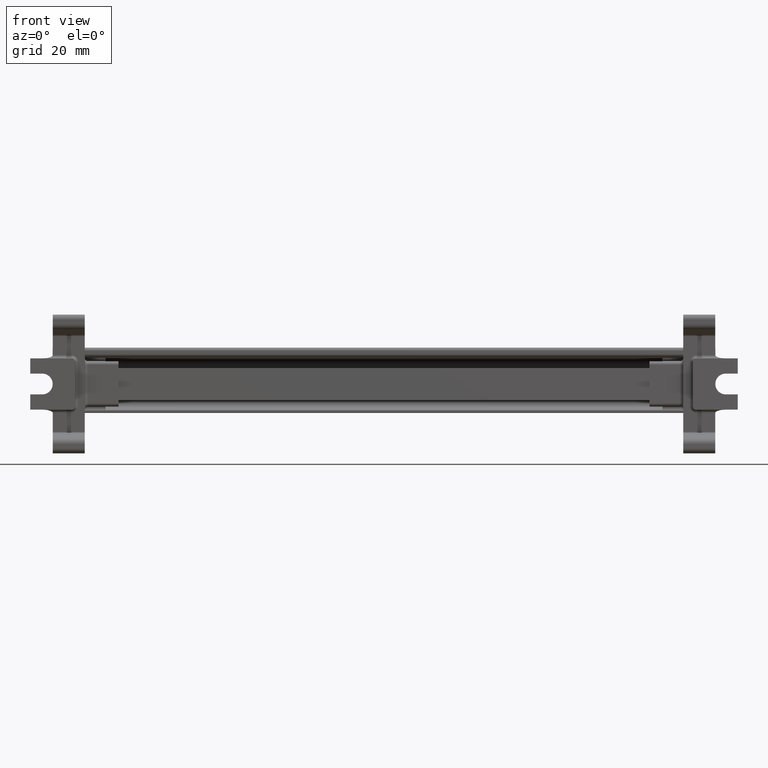
[diagram: clean part render]
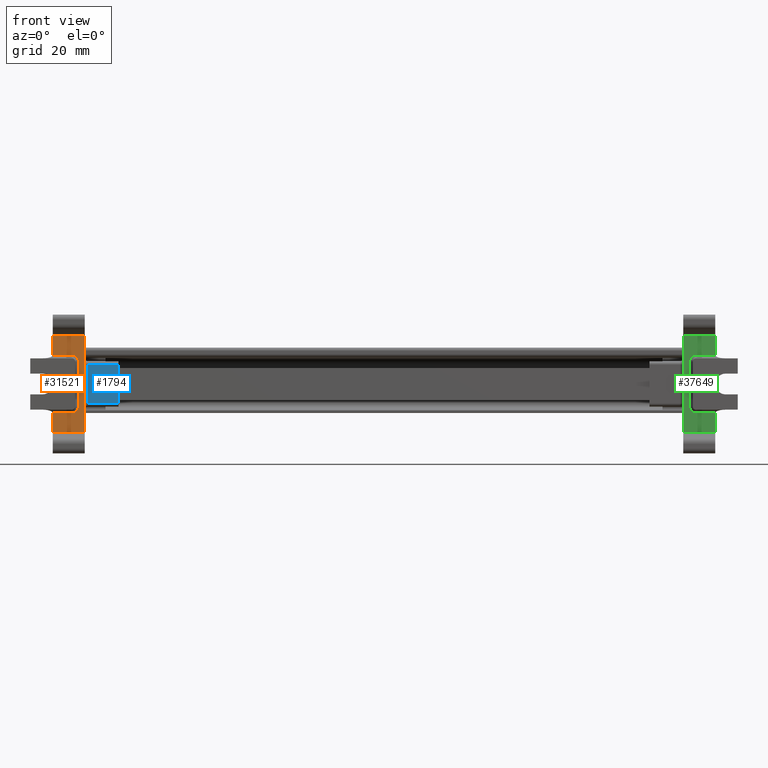
[diagram: same view with three faces highlighted in distinct colors, each labeled with its STEP entity id]
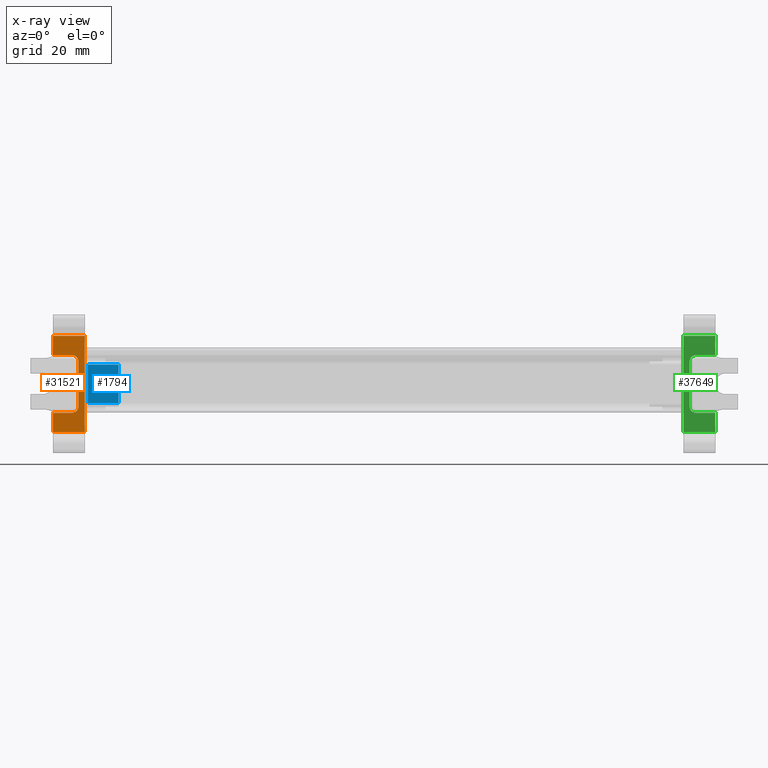
[diagram: x-ray of the same camera — body ghosted, the three highlighted faces saturated]
A machine part, front view with three faces highlighted in distinct colors.
The next image is the same camera in x-ray (body ghosted, the three faces saturated) — at least one of them is partly hidden behind the body in this view.
Their STEP definitions:

[orange] entity #31521 — the highlighted planar face has unit normal (-0, -1, -0).
#243 = CARTESIAN_POINT ( 'NONE',  ( -155.4526976958239857, 43.96882648293839679, 29.07865108636449847 ) ) ;
#386 = DIRECTION ( 'NONE',  ( -1.000000000000000000, 6.938893903907222067E-15, -6.938893903907222067E-15 ) ) ;
#1193 = CARTESIAN_POINT ( 'NONE',  ( -155.4526976958239857, 43.96882648293839679, 45.07664888101799505 ) ) ;
#1643 = FACE_OUTER_BOUND ( 'NONE', #4681, .T. ) ;
#2794 = VERTEX_POINT ( 'NONE', #24692 ) ;
#2900 = EDGE_CURVE ( 'NONE', #12511, #39218, #40234, .T. ) ;
#4128 = LINE ( 'NONE', #32311, #30719 ) ;
#4455 = VERTEX_POINT ( 'NONE', #33288 ) ;
#4572 = DIRECTION ( 'NONE',  ( -1.000000000000000000, 7.897574987183420406E-15, -3.511194208363125255E-15 ) ) ;
#4681 = EDGE_LOOP ( 'NONE', ( #29030, #11765, #17883, #14701, #29169, #6405, #34797, #40867, #12354, #12423, #8705, #35010 ) ) ;
#4854 = CARTESIAN_POINT ( 'NONE',  ( -161.4526976958239857, 43.96882648293844653, 47.07664888101800216 ) ) ;
#4958 = AXIS2_PLACEMENT_3D ( 'NONE', #1193, #33283, #39800 ) ;
#5154 = CARTESIAN_POINT ( 'NONE',  ( -153.4526976958239857, 43.96882648293839679, 31.07865108636449847 ) ) ;
#5491 = LINE ( 'NONE', #33489, #34584 ) ;
#5792 = AXIS2_PLACEMENT_3D ( 'NONE', #19531, #29367, #386 ) ;
#5916 = CARTESIAN_POINT ( 'NONE',  ( -161.4526976958239857, 43.96882648293844653, 49.54146295254189880 ) ) ;
#6099 = LINE ( 'NONE', #34667, #6580 ) ;
#6228 = CARTESIAN_POINT ( 'NONE',  ( -151.4526976958239857, 43.96882648293839679, 49.54146295254189880 ) ) ;
#6342 = EDGE_CURVE ( 'NONE', #8565, #10241, #10609, .T. ) ;
#6405 = ORIENTED_EDGE ( 'NONE', *, *, #6342, .F. ) ;
#6580 = VECTOR ( 'NONE', #31303, 1000.000000000000000 ) ;
#7265 = CARTESIAN_POINT ( 'NONE',  ( -161.4526976958239857, 43.96882648293844653, 47.07664888101800216 ) ) ;
#8565 = VERTEX_POINT ( 'NONE', #21407 ) ;
#8681 = DIRECTION ( 'NONE',  ( -1.000000000000000000, 7.897574987183420406E-15, -3.511194205269045152E-15 ) ) ;
#8705 = ORIENTED_EDGE ( 'NONE', *, *, #16557, .F. ) ;
#9149 = DIRECTION ( 'NONE',  ( 3.631720400235105499E-15, 0.0000000000000000000, -1.000000000000000000 ) ) ;
#9750 = VECTOR ( 'NONE', #9149, 1000.000000000000000 ) ;
#10241 = VERTEX_POINT ( 'NONE', #21878 ) ;
#10609 = CIRCLE ( 'NONE', #4958, 2.000000000000001776 ) ;
#11635 = CARTESIAN_POINT ( 'NONE',  ( -161.4526976958239857, 43.96882648293844653, 23.07587375111815220 ) ) ;
#11741 = VERTEX_POINT ( 'NONE', #11635 ) ;
#11765 = ORIENTED_EDGE ( 'NONE', *, *, #40974, .F. ) ;
#12354 = ORIENTED_EDGE ( 'NONE', *, *, #30658, .T. ) ;
#12423 = ORIENTED_EDGE ( 'NONE', *, *, #39259, .F. ) ;
#12511 = VERTEX_POINT ( 'NONE', #19156 ) ;
#12566 = CARTESIAN_POINT ( 'NONE',  ( -151.4526976958239857, 43.96882648293839679, 26.61383701484060182 ) ) ;
#12572 = VERTEX_POINT ( 'NONE', #38281 ) ;
#13885 = DIRECTION ( 'NONE',  ( -3.511194208363125255E-15, -9.518646382286148431E-31, 1.000000000000000000 ) ) ;
#14701 = ORIENTED_EDGE ( 'NONE', *, *, #30296, .T. ) ;
#15437 = EDGE_CURVE ( 'NONE', #27758, #8565, #5491, .T. ) ;
#15506 = CARTESIAN_POINT ( 'NONE',  ( -151.4526976958239857, 43.96882648293839679, 32.03904998369054624 ) ) ;
#15673 = CARTESIAN_POINT ( 'NONE',  ( -161.4526976958239857, 43.96882648293844653, 29.07865108636445228 ) ) ;
#16557 = EDGE_CURVE ( 'NONE', #12511, #11741, #18441, .T. ) ;
#17407 = DIRECTION ( 'NONE',  ( 3.631720400235105499E-15, 0.0000000000000000000, -1.000000000000000000 ) ) ;
#17659 = VERTEX_POINT ( 'NONE', #7265 ) ;
#17883 = ORIENTED_EDGE ( 'NONE', *, *, #29226, .T. ) ;
#18003 = LINE ( 'NONE', #24661, #28003 ) ;
#18441 = LINE ( 'NONE', #25204, #18921 ) ;
#18921 = VECTOR ( 'NONE', #25069, 1000.000000000000000 ) ;
#19156 = CARTESIAN_POINT ( 'NONE',  ( -151.4526976958239857, 43.96882648293824758, 23.07587375111815220 ) ) ;
#19251 = DIRECTION ( 'NONE',  ( -1.000000000000000000, 7.897574987183420406E-15, 0.0000000000000000000 ) ) ;
#19531 = CARTESIAN_POINT ( 'NONE',  ( -155.4526976958239857, 43.96882648293839679, 31.07865108636449847 ) ) ;
#21407 = CARTESIAN_POINT ( 'NONE',  ( -153.4526976958239857, 43.96882648293839679, 45.07664888101810163 ) ) ;
#21550 = CARTESIAN_POINT ( 'NONE',  ( -161.4526976958239857, 43.96882648293844653, 26.61383701484054853 ) ) ;
#21652 = VECTOR ( 'NONE', #4572, 1000.000000000000000 ) ;
#21758 = LINE ( 'NONE', #15673, #34839 ) ;
#21878 = CARTESIAN_POINT ( 'NONE',  ( -155.4526976958239857, 43.96882648293839679, 47.07664888101800216 ) ) ;
#22027 = VERTEX_POINT ( 'NONE', #243 ) ;
#23041 = AXIS2_PLACEMENT_3D ( 'NONE', #6228, #25436, #19251 ) ;
#23421 = EDGE_CURVE ( 'NONE', #27758, #22027, #32956, .T. ) ;
#24661 = CARTESIAN_POINT ( 'NONE',  ( -134.0183912028751934, 43.96882648293824758, 53.07942621626440172 ) ) ;
#24692 = CARTESIAN_POINT ( 'NONE',  ( -161.4526976958239857, 43.96882648293844653, 29.07865108636445228 ) ) ;
#25069 = DIRECTION ( 'NONE',  ( -1.000000000000000000, 7.897574987183420406E-15, -3.511194211457205358E-15 ) ) ;
#25204 = CARTESIAN_POINT ( 'NONE',  ( -134.0183912028750228, 43.96882648293824758, 23.07587375111824812 ) ) ;
#25436 = DIRECTION ( 'NONE',  ( -7.897574987183420406E-15, -1.000000000000000000, -2.868178419334055370E-29 ) ) ;
#25634 = DIRECTION ( 'NONE',  ( -1.000000000000000000, 7.897574987183420406E-15, -3.511194208363125255E-15 ) ) ;
#27597 = VECTOR ( 'NONE', #41331, 1000.000000000000000 ) ;
#27758 = VERTEX_POINT ( 'NONE', #5154 ) ;
#27889 = VERTEX_POINT ( 'NONE', #38428 ) ;
#28003 = VECTOR ( 'NONE', #8681, 1000.000000000000000 ) ;
#28204 = VECTOR ( 'NONE', #37739, 1000.000000000000000 ) ;
#29030 = ORIENTED_EDGE ( 'NONE', *, *, #31769, .F. ) ;
#29169 = ORIENTED_EDGE ( 'NONE', *, *, #32885, .F. ) ;
#29226 = EDGE_CURVE ( 'NONE', #4455, #12572, #18003, .T. ) ;
#29367 = DIRECTION ( 'NONE',  ( 6.938893903907220489E-15, 1.000000000000000000, -3.502977694783990082E-29 ) ) ;
#30296 = EDGE_CURVE ( 'NONE', #12572, #17659, #33338, .T. ) ;
#30658 = EDGE_CURVE ( 'NONE', #22027, #2794, #21758, .T. ) ;
#30719 = VECTOR ( 'NONE', #17407, 1000.000000000000000 ) ;
#31303 = DIRECTION ( 'NONE',  ( 3.631720400235105499E-15, 0.0000000000000000000, -1.000000000000000000 ) ) ;
#31521 = ADVANCED_FACE ( 'NONE', ( #1643 ), #38529, .T. ) ;
#31769 = EDGE_CURVE ( 'NONE', #27889, #39218, #4128, .T. ) ;
#32311 = CARTESIAN_POINT ( 'NONE',  ( -151.4526976958239857, 43.96882648293839679, 49.54146295254189880 ) ) ;
#32885 = EDGE_CURVE ( 'NONE', #10241, #17659, #35257, .T. ) ;
#32956 = CIRCLE ( 'NONE', #5792, 2.000000000000001776 ) ;
#33283 = DIRECTION ( 'NONE',  ( -6.938893903907220489E-15, -1.000000000000000000, -2.868178419334055370E-29 ) ) ;
#33288 = CARTESIAN_POINT ( 'NONE',  ( -151.4526976958239857, 43.96882648293824758, 53.07942621626440172 ) ) ;
#33338 = LINE ( 'NONE', #5916, #9750 ) ;
#33489 = CARTESIAN_POINT ( 'NONE',  ( -153.4526976958239857, 43.96882648293839679, 49.54146295254189880 ) ) ;
#34584 = VECTOR ( 'NONE', #13885, 1000.000000000000000 ) ;
#34667 = CARTESIAN_POINT ( 'NONE',  ( -151.4526976958239857, 43.96882648293839679, 49.54146295254189880 ) ) ;
#34797 = ORIENTED_EDGE ( 'NONE', *, *, #15437, .F. ) ;
#34839 = VECTOR ( 'NONE', #25634, 1000.000000000000000 ) ;
#35010 = ORIENTED_EDGE ( 'NONE', *, *, #2900, .T. ) ;
#35257 = LINE ( 'NONE', #4854, #21652 ) ;
#36810 = LINE ( 'NONE', #21550, #28204 ) ;
#37739 = DIRECTION ( 'NONE',  ( -3.390668016491145405E-15, 5.515564554018679964E-29, 1.000000000000000000 ) ) ;
#38281 = CARTESIAN_POINT ( 'NONE',  ( -161.4526976958239857, 43.96882648293844653, 53.07942621626430224 ) ) ;
#38428 = CARTESIAN_POINT ( 'NONE',  ( -151.4526976958239857, 43.96882648293839679, 44.11624998369200057 ) ) ;
#38529 = PLANE ( 'NONE',  #23041 ) ;
#39218 = VERTEX_POINT ( 'NONE', #15506 ) ;
#39259 = EDGE_CURVE ( 'NONE', #11741, #2794, #36810, .T. ) ;
#39800 = DIRECTION ( 'NONE',  ( -1.000000000000000000, 6.938893903907222067E-15, 0.0000000000000000000 ) ) ;
#40234 = LINE ( 'NONE', #12566, #27597 ) ;
#40867 = ORIENTED_EDGE ( 'NONE', *, *, #23421, .T. ) ;
#40974 = EDGE_CURVE ( 'NONE', #4455, #27889, #6099, .T. ) ;
#41331 = DIRECTION ( 'NONE',  ( -3.390668016491145405E-15, 5.515564554018679964E-29, 1.000000000000000000 ) ) ;

[blue] entity #1794 — the highlighted planar face has unit normal (-0, -1, 0).
#602 = CARTESIAN_POINT ( 'NONE',  ( -140.9633193442854235, 44.96882648293090057, 45.12304998369199183 ) ) ;
#1699 = CARTESIAN_POINT ( 'NONE',  ( -140.9633193442854235, 44.96882648293090057, 32.03904998369054624 ) ) ;
#1794 = ADVANCED_FACE ( 'NONE', ( #6658 ), #31961, .T. ) ;
#2744 = CARTESIAN_POINT ( 'NONE',  ( -140.9633193442854235, 44.96882648293090057, 44.11624998369205741 ) ) ;
#3416 = CARTESIAN_POINT ( 'NONE',  ( -140.9633193442854235, 44.96882648293090057, 32.03904998369054624 ) ) ;
#4801 = VECTOR ( 'NONE', #26752, 1000.000000000000000 ) ;
#5113 = CARTESIAN_POINT ( 'NONE',  ( -150.4526976958239857, 44.96882648293104978, 44.11624998369205741 ) ) ;
#5190 = VERTEX_POINT ( 'NONE', #20828 ) ;
#6207 = EDGE_CURVE ( 'NONE', #23828, #5190, #12309, .T. ) ;
#6410 = ORIENTED_EDGE ( 'NONE', *, *, #37292, .F. ) ;
#6658 = FACE_OUTER_BOUND ( 'NONE', #30150, .T. ) ;
#8179 = DIRECTION ( 'NONE',  ( -3.511194208363125255E-15, 1.306457599155422105E-28, 1.000000000000000000 ) ) ;
#8622 = LINE ( 'NONE', #3416, #34225 ) ;
#9905 = ORIENTED_EDGE ( 'NONE', *, *, #12323, .T. ) ;
#10090 = VECTOR ( 'NONE', #12438, 1000.000000000000000 ) ;
#12309 = LINE ( 'NONE', #2744, #10090 ) ;
#12323 = EDGE_CURVE ( 'NONE', #34306, #25985, #8622, .T. ) ;
#12438 = DIRECTION ( 'NONE',  ( 1.000000000000000000, -1.771379689657750072E-14, 4.241555170704320577E-15 ) ) ;
#14359 = LINE ( 'NONE', #602, #4801 ) ;
#15518 = DIRECTION ( 'NONE',  ( -1.000000000000000000, 1.771379689657750072E-14, 0.0000000000000000000 ) ) ;
#16008 = DIRECTION ( 'NONE',  ( 1.000000000000000000, -1.771379689657750072E-14, 2.780833246021929933E-15 ) ) ;
#18141 = CARTESIAN_POINT ( 'NONE',  ( -150.4526976958239857, 44.96882648293104978, 32.03904998369054624 ) ) ;
#18315 = EDGE_CURVE ( 'NONE', #34306, #23828, #25332, .T. ) ;
#20828 = CARTESIAN_POINT ( 'NONE',  ( -140.9633193442854235, 44.96882648293090057, 44.11624998369205741 ) ) ;
#22547 = CARTESIAN_POINT ( 'NONE',  ( -150.4526976958239857, 44.96882648293104978, 44.11624998369200057 ) ) ;
#23828 = VERTEX_POINT ( 'NONE', #22547 ) ;
#25332 = LINE ( 'NONE', #5113, #29834 ) ;
#25837 = ORIENTED_EDGE ( 'NONE', *, *, #6207, .F. ) ;
#25985 = VERTEX_POINT ( 'NONE', #1699 ) ;
#26752 = DIRECTION ( 'NONE',  ( 2.979255515977940054E-15, -1.212231059572000054E-28, -1.000000000000000000 ) ) ;
#26886 = ORIENTED_EDGE ( 'NONE', *, *, #18315, .F. ) ;
#28840 = DIRECTION ( 'NONE',  ( -1.771379689657750072E-14, -1.000000000000000000, 6.844917884415870952E-29 ) ) ;
#29834 = VECTOR ( 'NONE', #8179, 1000.000000000000000 ) ;
#30150 = EDGE_LOOP ( 'NONE', ( #6410, #25837, #26886, #9905 ) ) ;
#31820 = CARTESIAN_POINT ( 'NONE',  ( -140.9633193442854235, 44.96882648293090057, 31.03904998369100099 ) ) ;
#31961 = PLANE ( 'NONE',  #33594 ) ;
#33594 = AXIS2_PLACEMENT_3D ( 'NONE', #31820, #28840, #15518 ) ;
#34225 = VECTOR ( 'NONE', #16008, 1000.000000000000000 ) ;
#34306 = VERTEX_POINT ( 'NONE', #18141 ) ;
#37292 = EDGE_CURVE ( 'NONE', #5190, #25985, #14359, .T. ) ;

[green] entity #37649 — the highlighted planar face has unit normal (-0, -1, -0).
#1189 = AXIS2_PLACEMENT_3D ( 'NONE', #23098, #32479, #6677 ) ;
#1482 = EDGE_CURVE ( 'NONE', #16775, #29556, #15200, .T. ) ;
#1620 = EDGE_CURVE ( 'NONE', #25112, #5484, #9193, .T. ) ;
#1798 = CARTESIAN_POINT ( 'NONE',  ( 35.04730230417590064, 43.96882648293770046, 26.61383701484090025 ) ) ;
#2420 = LINE ( 'NONE', #30863, #29000 ) ;
#2689 = EDGE_LOOP ( 'NONE', ( #7811, #25142, #15849, #3145, #25916, #23674, #26377, #6609, #3395, #9226, #24966, #15374 ) ) ;
#2897 = DIRECTION ( 'NONE',  ( 1.000000000000000000, -7.897574987183420406E-15, 3.511194208363125255E-15 ) ) ;
#3145 = ORIENTED_EDGE ( 'NONE', *, *, #35735, .T. ) ;
#3395 = ORIENTED_EDGE ( 'NONE', *, *, #39766, .T. ) ;
#4898 = CARTESIAN_POINT ( 'NONE',  ( 35.04730230417584380, 43.96882648293770046, 49.54146295254219723 ) ) ;
#5484 = VERTEX_POINT ( 'NONE', #13949 ) ;
#5988 = CARTESIAN_POINT ( 'NONE',  ( 35.04730230417590064, 43.96882648293755125, 23.07587375111845063 ) ) ;
#6609 = ORIENTED_EDGE ( 'NONE', *, *, #27985, .T. ) ;
#6645 = CARTESIAN_POINT ( 'NONE',  ( 45.04730230417590064, 43.96882648293760099, 29.07865108636485019 ) ) ;
#6677 = DIRECTION ( 'NONE',  ( 1.000000000000000000, -6.938893903907222067E-15, 6.938893903907222067E-15 ) ) ;
#7211 = VECTOR ( 'NONE', #29460, 1000.000000000000000 ) ;
#7811 = ORIENTED_EDGE ( 'NONE', *, *, #12542, .T. ) ;
#8874 = VERTEX_POINT ( 'NONE', #6645 ) ;
#9193 = LINE ( 'NONE', #4898, #26240 ) ;
#9211 = DIRECTION ( 'NONE',  ( 3.390668016491145405E-15, 1.903729276457239495E-30, -1.000000000000000000 ) ) ;
#9219 = PLANE ( 'NONE',  #15933 ) ;
#9226 = ORIENTED_EDGE ( 'NONE', *, *, #26583, .F. ) ;
#9530 = CARTESIAN_POINT ( 'NONE',  ( 39.04730230417585091, 43.96882648293765072, 47.07664888101830769 ) ) ;
#10178 = LINE ( 'NONE', #21920, #19216 ) ;
#10464 = VERTEX_POINT ( 'NONE', #20516 ) ;
#11252 = EDGE_CURVE ( 'NONE', #25112, #13173, #20761, .T. ) ;
#12542 = EDGE_CURVE ( 'NONE', #5484, #28399, #25211, .T. ) ;
#12716 = VECTOR ( 'NONE', #37782, 1000.000000000000000 ) ;
#13173 = VERTEX_POINT ( 'NONE', #36945 ) ;
#13949 = CARTESIAN_POINT ( 'NONE',  ( 35.04730230417584380, 43.96882648293770046, 44.11624998369230610 ) ) ;
#15200 = LINE ( 'NONE', #28308, #12716 ) ;
#15293 = VERTEX_POINT ( 'NONE', #9530 ) ;
#15374 = ORIENTED_EDGE ( 'NONE', *, *, #1620, .T. ) ;
#15621 = CARTESIAN_POINT ( 'NONE',  ( 35.04730230417580117, 43.96882648293755125, 53.07942621626470014 ) ) ;
#15632 = CARTESIAN_POINT ( 'NONE',  ( 45.04730230417590064, 43.96882648293760099, 29.07865108636485019 ) ) ;
#15714 = EDGE_CURVE ( 'NONE', #18662, #8874, #38614, .T. ) ;
#15849 = ORIENTED_EDGE ( 'NONE', *, *, #34165, .T. ) ;
#15933 = AXIS2_PLACEMENT_3D ( 'NONE', #38015, #25468, #22394 ) ;
#15984 = CARTESIAN_POINT ( 'NONE',  ( 17.61299581122679925, 43.96882648293784968, 53.07942621626460067 ) ) ;
#16037 = CARTESIAN_POINT ( 'NONE',  ( 39.04730230417585091, 43.96882648293765072, 31.07865108636484663 ) ) ;
#16123 = AXIS2_PLACEMENT_3D ( 'NONE', #16037, #21809, #22243 ) ;
#16707 = VECTOR ( 'NONE', #30509, 1000.000000000000000 ) ;
#16775 = VERTEX_POINT ( 'NONE', #38708 ) ;
#17840 = CARTESIAN_POINT ( 'NONE',  ( 45.04730230417590064, 43.96882648293760099, 23.07587375111855010 ) ) ;
#18662 = VERTEX_POINT ( 'NONE', #29858 ) ;
#19208 = CARTESIAN_POINT ( 'NONE',  ( 45.04730230417580117, 43.96882648293760099, 49.54146295254229670 ) ) ;
#19216 = VECTOR ( 'NONE', #31478, 1000.000000000000000 ) ;
#19992 = CIRCLE ( 'NONE', #16123, 2.000000000000001776 ) ;
#20510 = CARTESIAN_POINT ( 'NONE',  ( 17.61299581122690228, 43.96882648293784968, 23.07587375111845063 ) ) ;
#20516 = CARTESIAN_POINT ( 'NONE',  ( 45.04730230417580117, 43.96882648293760099, 47.07664888101840006 ) ) ;
#20761 = LINE ( 'NONE', #15984, #7211 ) ;
#21809 = DIRECTION ( 'NONE',  ( -6.938893903907220489E-15, -1.000000000000000000, 2.837759062330349839E-29 ) ) ;
#21920 = CARTESIAN_POINT ( 'NONE',  ( 45.04730230417580117, 43.96882648293760099, 47.07664888101840006 ) ) ;
#21976 = VECTOR ( 'NONE', #2897, 1000.000000000000000 ) ;
#22167 = DIRECTION ( 'NONE',  ( 3.390668016491145405E-15, 1.903729276457239495E-30, -1.000000000000000000 ) ) ;
#22243 = DIRECTION ( 'NONE',  ( 1.000000000000000000, -6.938893903907222067E-15, 0.0000000000000000000 ) ) ;
#22394 = DIRECTION ( 'NONE',  ( -1.000000000000000000, 7.897574987183420406E-15, 0.0000000000000000000 ) ) ;
#22749 = VECTOR ( 'NONE', #22167, 1000.000000000000000 ) ;
#23098 = CARTESIAN_POINT ( 'NONE',  ( 39.04730230417585091, 43.96882648293765072, 45.07664888101830059 ) ) ;
#23674 = ORIENTED_EDGE ( 'NONE', *, *, #34778, .F. ) ;
#23758 = LINE ( 'NONE', #1798, #16707 ) ;
#24814 = FACE_OUTER_BOUND ( 'NONE', #2689, .T. ) ;
#24966 = ORIENTED_EDGE ( 'NONE', *, *, #11252, .F. ) ;
#25112 = VERTEX_POINT ( 'NONE', #15621 ) ;
#25142 = ORIENTED_EDGE ( 'NONE', *, *, #30966, .F. ) ;
#25211 = LINE ( 'NONE', #41360, #27208 ) ;
#25468 = DIRECTION ( 'NONE',  ( -7.897574987183420406E-15, -1.000000000000000000, -2.868178419334055370E-29 ) ) ;
#25916 = ORIENTED_EDGE ( 'NONE', *, *, #15714, .F. ) ;
#26240 = VECTOR ( 'NONE', #33792, 1000.000000000000000 ) ;
#26377 = ORIENTED_EDGE ( 'NONE', *, *, #1482, .T. ) ;
#26583 = EDGE_CURVE ( 'NONE', #13173, #10464, #33280, .T. ) ;
#27111 = DIRECTION ( 'NONE',  ( 1.000000000000000000, -7.897574987183420406E-15, 3.511194205269045152E-15 ) ) ;
#27208 = VECTOR ( 'NONE', #9211, 1000.000000000000000 ) ;
#27985 = EDGE_CURVE ( 'NONE', #29556, #15293, #39234, .T. ) ;
#28308 = CARTESIAN_POINT ( 'NONE',  ( 37.04730230417585091, 43.96882648293770046, 49.54146295254219723 ) ) ;
#28399 = VERTEX_POINT ( 'NONE', #31744 ) ;
#29000 = VECTOR ( 'NONE', #37352, 1000.000000000000000 ) ;
#29460 = DIRECTION ( 'NONE',  ( 1.000000000000000000, -7.897574987183420406E-15, 3.511194211457205358E-15 ) ) ;
#29556 = VERTEX_POINT ( 'NONE', #30377 ) ;
#29858 = CARTESIAN_POINT ( 'NONE',  ( 39.04730230417585091, 43.96882648293765072, 29.07865108636485019 ) ) ;
#30377 = CARTESIAN_POINT ( 'NONE',  ( 37.04730230417585091, 43.96882648293770046, 45.07664888101840006 ) ) ;
#30509 = DIRECTION ( 'NONE',  ( -3.631720400235105499E-15, 5.705937481664399605E-29, 1.000000000000000000 ) ) ;
#30863 = CARTESIAN_POINT ( 'NONE',  ( 45.04730230417590064, 43.96882648293760099, 26.61383701484095354 ) ) ;
#30966 = EDGE_CURVE ( 'NONE', #37712, #28399, #23758, .T. ) ;
#31478 = DIRECTION ( 'NONE',  ( 1.000000000000000000, -7.897574987183420406E-15, 3.511194208363125255E-15 ) ) ;
#31744 = CARTESIAN_POINT ( 'NONE',  ( 35.04730230417584380, 43.96882648293770046, 32.03904998369085178 ) ) ;
#31977 = VERTEX_POINT ( 'NONE', #17840 ) ;
#32148 = VECTOR ( 'NONE', #27111, 1000.000000000000000 ) ;
#32479 = DIRECTION ( 'NONE',  ( 6.938893903907220489E-15, 1.000000000000000000, 2.202959786880420172E-29 ) ) ;
#33280 = LINE ( 'NONE', #19208, #22749 ) ;
#33792 = DIRECTION ( 'NONE',  ( 3.390668016491145405E-15, 1.903729276457239495E-30, -1.000000000000000000 ) ) ;
#34165 = EDGE_CURVE ( 'NONE', #37712, #31977, #40727, .T. ) ;
#34778 = EDGE_CURVE ( 'NONE', #16775, #18662, #19992, .T. ) ;
#35735 = EDGE_CURVE ( 'NONE', #31977, #8874, #2420, .T. ) ;
#36945 = CARTESIAN_POINT ( 'NONE',  ( 45.04730230417580117, 43.96882648293760099, 53.07942621626470014 ) ) ;
#37352 = DIRECTION ( 'NONE',  ( -3.631720400235105499E-15, 5.705937481664399605E-29, 1.000000000000000000 ) ) ;
#37649 = ADVANCED_FACE ( 'NONE', ( #24814 ), #9219, .T. ) ;
#37712 = VERTEX_POINT ( 'NONE', #5988 ) ;
#37782 = DIRECTION ( 'NONE',  ( -3.511194208363125255E-15, -9.518646382286097634E-31, 1.000000000000000000 ) ) ;
#38015 = CARTESIAN_POINT ( 'NONE',  ( 35.04730230417584380, 43.96882648293770046, 49.54146295254219723 ) ) ;
#38614 = LINE ( 'NONE', #15632, #21976 ) ;
#38708 = CARTESIAN_POINT ( 'NONE',  ( 37.04730230417585091, 43.96882648293770046, 31.07865108636480045 ) ) ;
#39234 = CIRCLE ( 'NONE', #1189, 2.000000000000001776 ) ;
#39766 = EDGE_CURVE ( 'NONE', #15293, #10464, #10178, .T. ) ;
#40727 = LINE ( 'NONE', #20510, #32148 ) ;
#41360 = CARTESIAN_POINT ( 'NONE',  ( 35.04730230417584380, 43.96882648293770046, 49.54146295254219723 ) ) ;